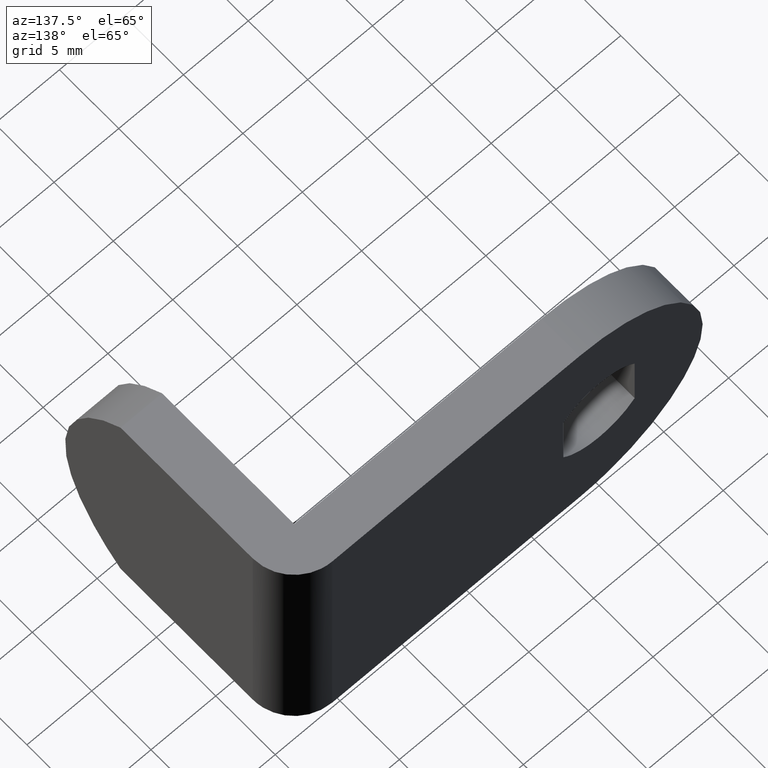
[diagram: clean part render]
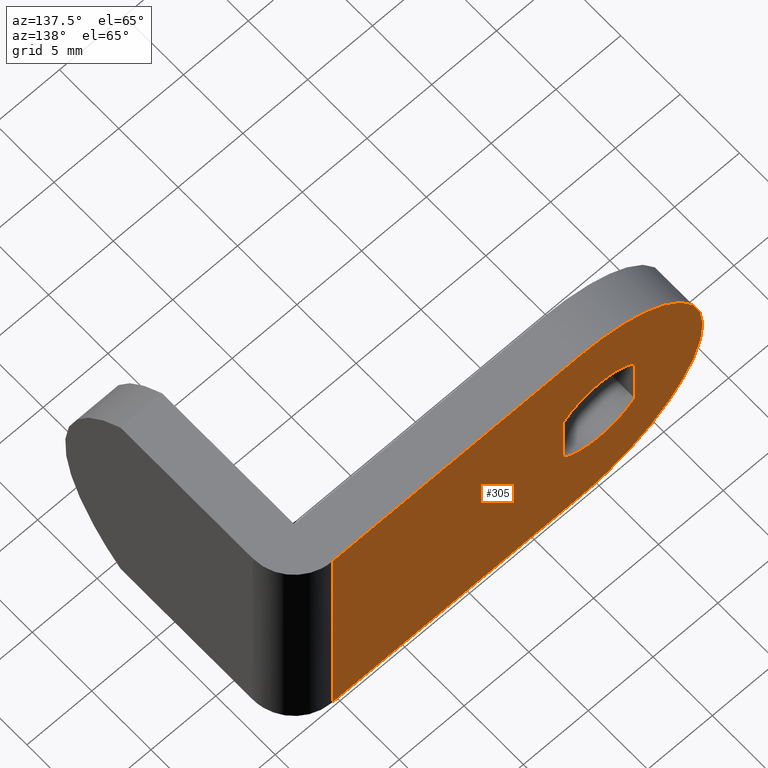
[diagram: same view with one face highlighted and labeled with its STEP entity id]
A machine part, auxiliary view. The second image highlights one B-rep face of the part: STEP entity #305.
In plain terms, the highlighted face is a freeform B-spline surface patch.
Its self-contained STEP definition (entity closure, byte-faithful):
#58=CARTESIAN_POINT('',(20.600000000000001,0.0,-9.500000000000000));
#59=VERTEX_POINT('',#58);
#75=CARTESIAN_POINT('',(20.600000000000001,0.0,9.500000000000000));
#76=VERTEX_POINT('',#75);
#77=CARTESIAN_POINT('',(20.600000000000001,0.0,9.500000000000000));
#78=CARTESIAN_POINT('',(20.600000000000001,0.0,-9.500000000000000));
#79=QUASI_UNIFORM_CURVE('',1,(#77,#78),.UNSPECIFIED.,.F.,.U.);
#80=EDGE_CURVE('',#76,#59,#79,.T.);
#218=CARTESIAN_POINT('',(-9.428569944567636,0.0,10.449049963174311));
#219=CARTESIAN_POINT('',(22.028570711679428,0.0,10.449049963174311));
#220=CARTESIAN_POINT('',(-9.428569944567636,0.0,-10.449050472794021));
#221=CARTESIAN_POINT('',(22.028570711679428,0.0,-10.449050472794021));
#222=B_SPLINE_SURFACE_WITH_KNOTS('',1,1,((#218,#220),(#219,#221)),.UNSPECIFIED.,.F.,.F.,.U.,(2,2),(2,2),(0.0,31.457140656247059),(0.0,20.898100435968342),.UNSPECIFIED.);
#223=CARTESIAN_POINT('',(1.500000000000000,0.0,9.500000000000000));
#224=VERTEX_POINT('',#223);
#225=CARTESIAN_POINT('',(20.600000000000001,0.0,9.500000000000000));
#226=CARTESIAN_POINT('',(1.500000000000000,0.0,9.500000000000000));
#227=QUASI_UNIFORM_CURVE('',1,(#225,#226),.UNSPECIFIED.,.F.,.U.);
#228=EDGE_CURVE('',#76,#224,#227,.T.);
#229=ORIENTED_EDGE('',*,*,#228,.F.);
#230=ORIENTED_EDGE('',*,*,#80,.T.);
#231=CARTESIAN_POINT('',(1.500000000000000,0.0,-9.500000000000000));
#232=VERTEX_POINT('',#231);
#233=CARTESIAN_POINT('',(1.500000000000000,0.0,-9.500000000000000));
#234=CARTESIAN_POINT('',(20.600000000000001,0.0,-9.500000000000000));
#235=QUASI_UNIFORM_CURVE('',1,(#233,#234),.UNSPECIFIED.,.F.,.U.);
#236=EDGE_CURVE('',#232,#59,#235,.T.);
#237=ORIENTED_EDGE('',*,*,#236,.F.);
#238=CARTESIAN_POINT('',(1.500000000000000,0.0,9.500000000000000));
#239=CARTESIAN_POINT('',(-8.0,0.0,9.500000000000000));
#240=CARTESIAN_POINT('',(-8.0,0.0,0.0));
#241=CARTESIAN_POINT('',(-8.0,0.0,-9.500000000000000));
#242=CARTESIAN_POINT('',(1.500000000000000,0.0,-9.500000000000000));
#250=(BOUNDED_CURVE()B_SPLINE_CURVE(2,(#238,#239,#240,#241,#242),.UNSPECIFIED.,.F.,.U.)B_SPLINE_CURVE_WITH_KNOTS((3,2,3),(0.0,0.500000000000000,1.0),.UNSPECIFIED.)CURVE()GEOMETRIC_REPRESENTATION_ITEM()RATIONAL_B_SPLINE_CURVE((1.0,0.707106781186548,1.0,0.707106781186548,1.0))REPRESENTATION_ITEM(''));
#251=EDGE_CURVE('',#224,#232,#250,.T.);
#252=ORIENTED_EDGE('',*,*,#251,.F.);
#253=EDGE_LOOP('',(#229,#230,#237,#252));
#254=FACE_OUTER_BOUND('',#253,.T.);
#255=CARTESIAN_POINT('',(-2.750000000000000,0.0,-2.323252031097790));
#256=VERTEX_POINT('',#255);
#257=CARTESIAN_POINT('',(2.750000000000000,0.0,-2.323252031097790));
#258=VERTEX_POINT('',#257);
#259=CARTESIAN_POINT('',(-2.749999999999999,0.0,-2.323252031097790));
#260=CARTESIAN_POINT('',(-1.671379159290166,0.0,-3.600000000000001));
#261=CARTESIAN_POINT('',(0.0,0.0,-3.600000000000000));
#262=CARTESIAN_POINT('',(1.671379159290166,0.0,-3.600000000000001));
#263=CARTESIAN_POINT('',(2.749999999999998,0.0,-2.323252031097791));
#271=(BOUNDED_CURVE()B_SPLINE_CURVE(2,(#259,#260,#261,#262,#263),.UNSPECIFIED.,.F.,.U.)B_SPLINE_CURVE_WITH_KNOTS((3,2,3),(0.0,0.500000000000000,1.0),.UNSPECIFIED.)CURVE()GEOMETRIC_REPRESENTATION_ITEM()RATIONAL_B_SPLINE_CURVE((1.0,0.907013722723105,1.0,0.907013722723105,1.0))REPRESENTATION_ITEM(''));
#272=EDGE_CURVE('',#256,#258,#271,.T.);
#273=ORIENTED_EDGE('',*,*,#272,.T.);
#274=CARTESIAN_POINT('',(2.750000000000000,0.0,2.323252031097790));
#275=VERTEX_POINT('',#274);
#276=CARTESIAN_POINT('',(2.750000000000000,0.0,2.323252031097790));
#277=CARTESIAN_POINT('',(2.750000000000000,0.0,-2.323252031097790));
#278=QUASI_UNIFORM_CURVE('',1,(#276,#277),.UNSPECIFIED.,.F.,.U.);
#279=EDGE_CURVE('',#275,#258,#278,.T.);
#280=ORIENTED_EDGE('',*,*,#279,.F.);
#281=CARTESIAN_POINT('',(-2.750000000000000,0.0,2.323252031097790));
#282=VERTEX_POINT('',#281);
#283=CARTESIAN_POINT('',(2.749999999999999,0.0,2.323252031097790));
#284=CARTESIAN_POINT('',(1.671379159290166,0.0,3.600000000000001));
#285=CARTESIAN_POINT('',(0.0,0.0,3.600000000000000));
#286=CARTESIAN_POINT('',(-1.671379159290165,0.0,3.600000000000001));
#287=CARTESIAN_POINT('',(-2.749999999999998,0.0,2.323252031097791));
#295=(BOUNDED_CURVE()B_SPLINE_CURVE(2,(#283,#284,#285,#286,#287),.UNSPECIFIED.,.F.,.U.)B_SPLINE_CURVE_WITH_KNOTS((3,2,3),(0.0,0.500000000000000,1.0),.UNSPECIFIED.)CURVE()GEOMETRIC_REPRESENTATION_ITEM()RATIONAL_B_SPLINE_CURVE((1.0,0.907013722723105,1.0,0.907013722723105,1.0))REPRESENTATION_ITEM(''));
#296=EDGE_CURVE('',#275,#282,#295,.T.);
#297=ORIENTED_EDGE('',*,*,#296,.T.);
#298=CARTESIAN_POINT('',(-2.750000000000000,0.0,-2.323252031097790));
#299=CARTESIAN_POINT('',(-2.750000000000000,0.0,2.323252031097790));
#300=QUASI_UNIFORM_CURVE('',1,(#298,#299),.UNSPECIFIED.,.F.,.U.);
#301=EDGE_CURVE('',#256,#282,#300,.T.);
#302=ORIENTED_EDGE('',*,*,#301,.F.);
#303=EDGE_LOOP('',(#273,#280,#297,#302));
#304=FACE_BOUND('',#303,.T.);
#305=ADVANCED_FACE('',(#254,#304),#222,.T.);